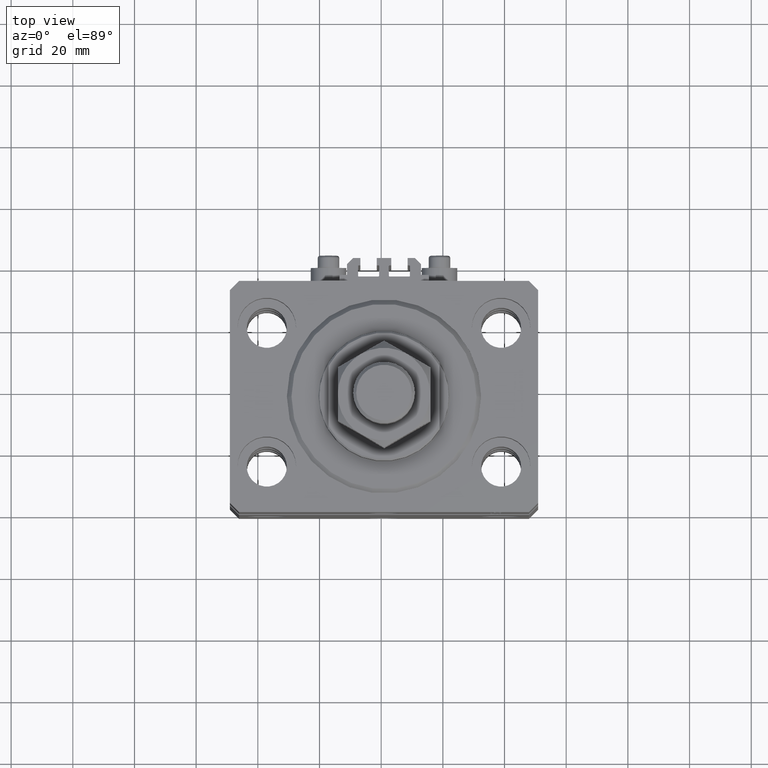
[diagram: clean part render]
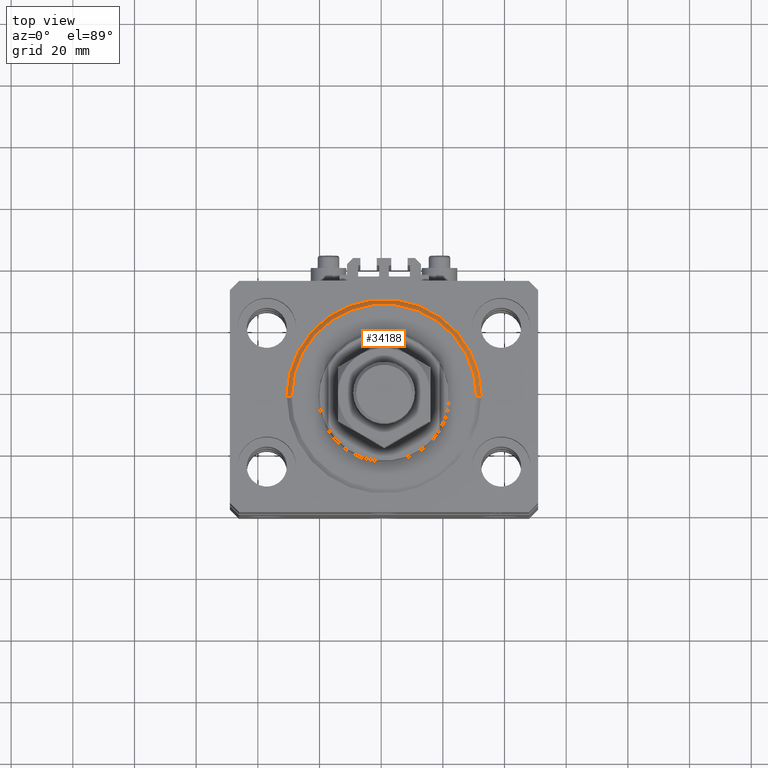
[diagram: same view with one face highlighted and labeled with its STEP entity id]
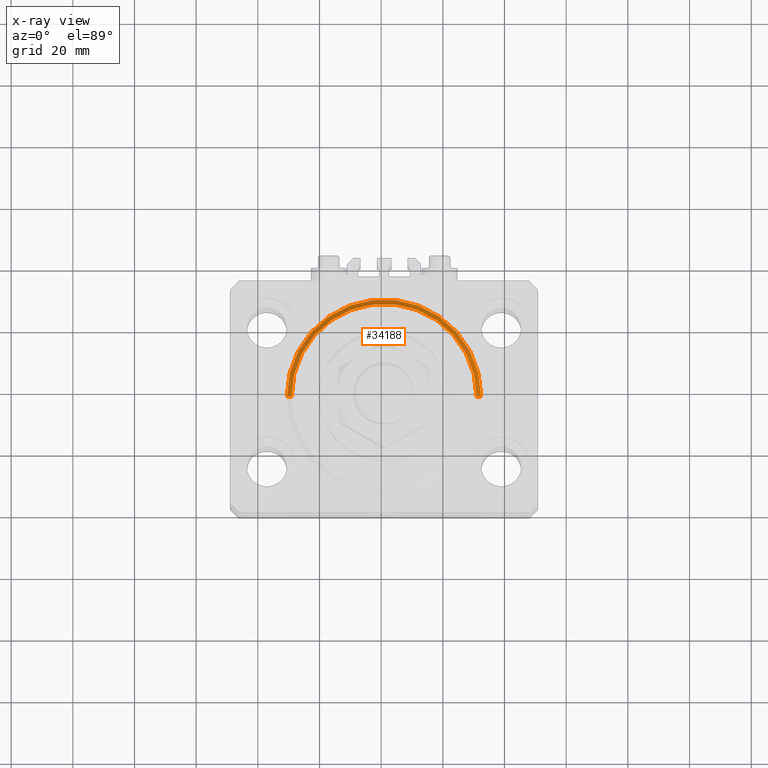
[diagram: x-ray of the same camera — body ghosted, the highlighted face saturated]
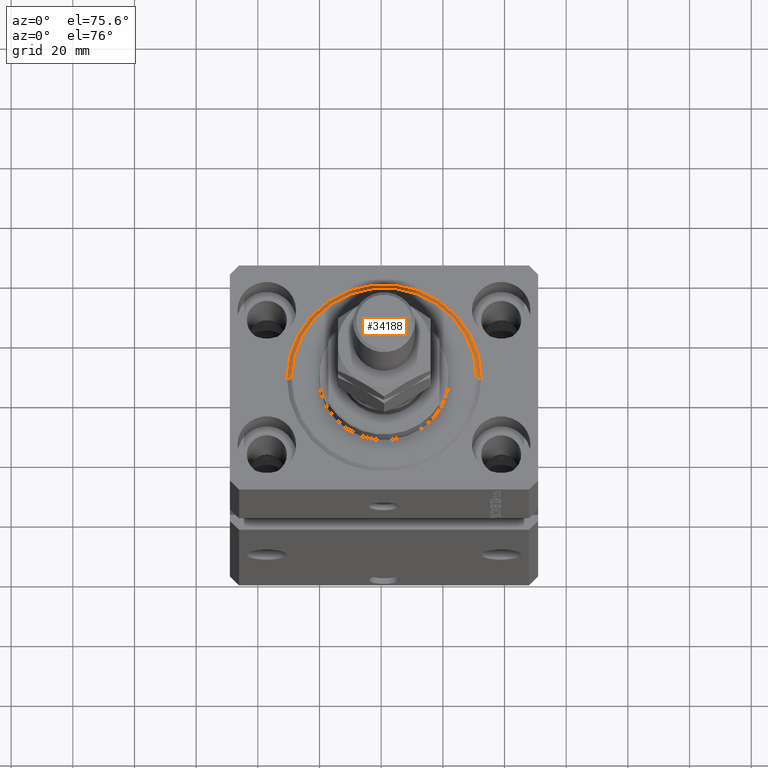
[diagram: same view with one face highlighted and labeled with its STEP entity id]
A machine part, top view. The second image highlights one B-rep face of the part: STEP entity #34188.
The next image is the same camera in x-ray: the body ghosted, the highlighted face saturated — about 0% of this face is hidden behind the body in this view.
A second angle (auxiliary view) of the same face is appended — the face is thin or edge-on in the first view.
In plain terms, the highlighted conical surface has half-angle 45 deg.
Its self-contained STEP definition (entity closure, byte-faithful):
#241 = EDGE_CURVE ( 'NONE', #44362, #13003, #8046, .T. ) ;
#457 = CARTESIAN_POINT ( 'NONE',  ( -31.50000000000000000, 0.000000000000000000, 1.500000000000001332 ) ) ;
#2036 = VECTOR ( 'NONE', #11613, 1000.000000000000000 ) ;
#2500 = ORIENTED_EDGE ( 'NONE', *, *, #241, .T. ) ;
#5716 = CARTESIAN_POINT ( 'NONE',  ( -29.99999999999999289, 3.765788907378110539E-15, 0.000000000000000000 ) ) ;
#5841 = EDGE_CURVE ( 'NONE', #9221, #13003, #40276, .T. ) ;
#6934 = EDGE_LOOP ( 'NONE', ( #22744, #2500, #30416, #8654 ) ) ;
#8046 = LINE ( 'NONE', #15916, #2036 ) ;
#8654 = ORIENTED_EDGE ( 'NONE', *, *, #19289, .F. ) ;
#9103 = DIRECTION ( 'NONE',  ( -0.000000000000000000, -0.000000000000000000, -1.000000000000000000 ) ) ;
#9221 = VERTEX_POINT ( 'NONE', #21486 ) ;
#10387 = AXIS2_PLACEMENT_3D ( 'NONE', #16984, #9103, #13697 ) ;
#10902 = EDGE_CURVE ( 'NONE', #44362, #13682, #20151, .T. ) ;
#11613 = DIRECTION ( 'NONE',  ( -0.7071067811865491270, 8.659560562354952580E-17, 0.7071067811865459074 ) ) ;
#13003 = VERTEX_POINT ( 'NONE', #457 ) ;
#13682 = VERTEX_POINT ( 'NONE', #45097 ) ;
#13697 = DIRECTION ( 'NONE',  ( 1.000000000000000000, 0.000000000000000000, 0.000000000000000000 ) ) ;
#15123 = AXIS2_PLACEMENT_3D ( 'NONE', #39116, #35791, #20522 ) ;
#15916 = CARTESIAN_POINT ( 'NONE',  ( -31.50000000000000000, 3.857637417314162689E-15, 1.500000000000001332 ) ) ;
#16984 = CARTESIAN_POINT ( 'NONE',  ( 0.000000000000000000, 0.000000000000000000, 0.000000000000000000 ) ) ;
#19289 = EDGE_CURVE ( 'NONE', #13682, #9221, #25326, .T. ) ;
#20151 = CIRCLE ( 'NONE', #10387, 29.99999999999999289 ) ;
#20369 = FACE_OUTER_BOUND ( 'NONE', #6934, .T. ) ;
#20522 = DIRECTION ( 'NONE',  ( 1.000000000000000000, 0.000000000000000000, 0.000000000000000000 ) ) ;
#21275 = CARTESIAN_POINT ( 'NONE',  ( 31.50000000000000000, 0.000000000000000000, 1.500000000000001332 ) ) ;
#21486 = CARTESIAN_POINT ( 'NONE',  ( 31.50000000000000000, 3.857637417314162689E-15, 1.500000000000001332 ) ) ;
#22744 = ORIENTED_EDGE ( 'NONE', *, *, #10902, .F. ) ;
#24173 = CARTESIAN_POINT ( 'NONE',  ( 0.000000000000000000, 0.000000000000000000, 1.500000000000001332 ) ) ;
#24565 = DIRECTION ( 'NONE',  ( 0.7071067811865491270, 0.000000000000000000, 0.7071067811865459074 ) ) ;
#25326 = LINE ( 'NONE', #21275, #44731 ) ;
#27910 = AXIS2_PLACEMENT_3D ( 'NONE', #24173, #40217, #31579 ) ;
#30416 = ORIENTED_EDGE ( 'NONE', *, *, #5841, .F. ) ;
#31579 = DIRECTION ( 'NONE',  ( 1.000000000000000000, 0.000000000000000000, 0.000000000000000000 ) ) ;
#33580 = CONICAL_SURFACE ( 'NONE', #27910, 31.50000000000000000, 0.7853981633974506105 ) ;
#34188 = ADVANCED_FACE ( 'NONE', ( #20369 ), #33580, .T. ) ;
#35791 = DIRECTION ( 'NONE',  ( -0.000000000000000000, -0.000000000000000000, 1.000000000000000000 ) ) ;
#39116 = CARTESIAN_POINT ( 'NONE',  ( 0.000000000000000000, 0.000000000000000000, 1.500000000000001332 ) ) ;
#40217 = DIRECTION ( 'NONE',  ( -0.000000000000000000, -0.000000000000000000, 1.000000000000000000 ) ) ;
#40276 = CIRCLE ( 'NONE', #15123, 31.50000000000000000 ) ;
#44362 = VERTEX_POINT ( 'NONE', #5716 ) ;
#44731 = VECTOR ( 'NONE', #24565, 1000.000000000000000 ) ;
#45097 = CARTESIAN_POINT ( 'NONE',  ( 29.99999999999999289, 0.000000000000000000, 0.000000000000000000 ) ) ;